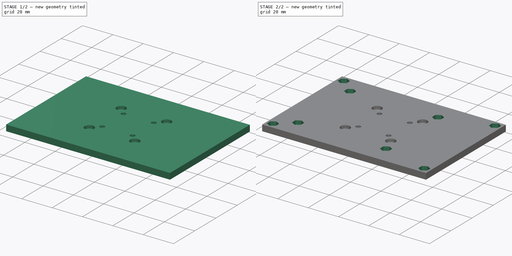
[diagram: build sequence overview — one tinted view per stage of 2, left to right]
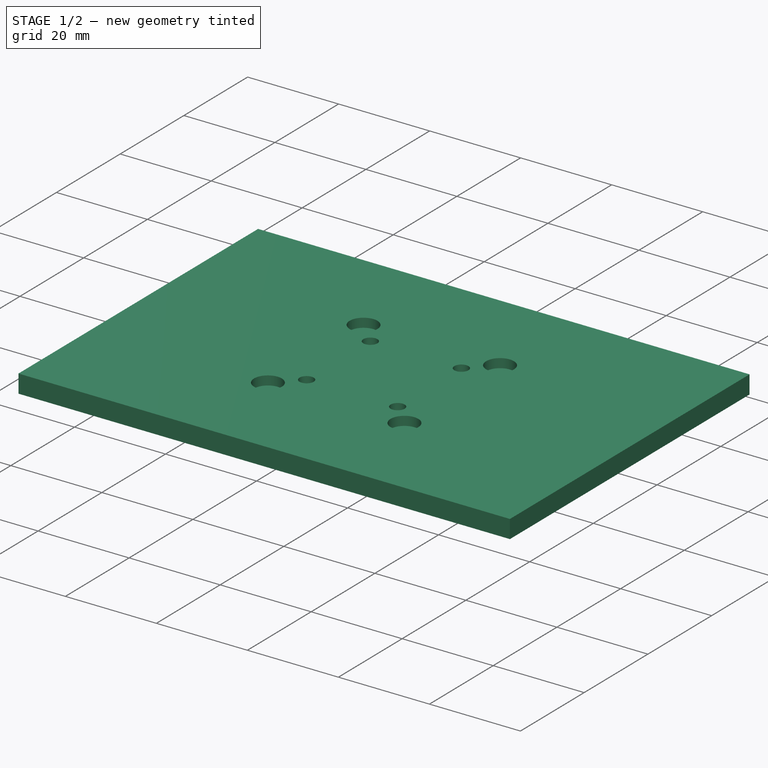
[diagram: stage 1 of 2 — iso view after this stage's code; geometry added in this stage tinted green]
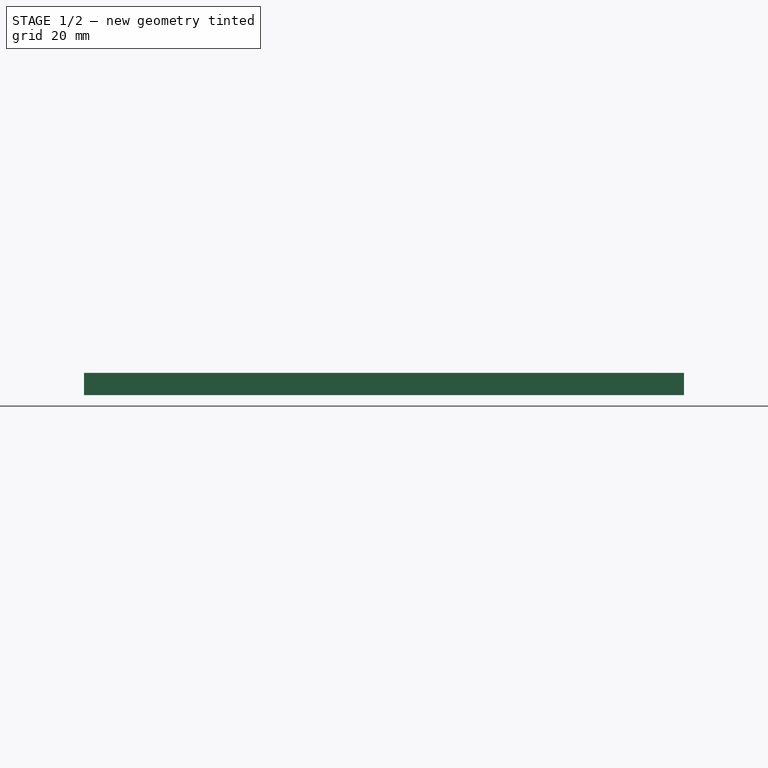
[diagram: stage 1 of 2 — front view after this stage's code; geometry added in this stage tinted green]
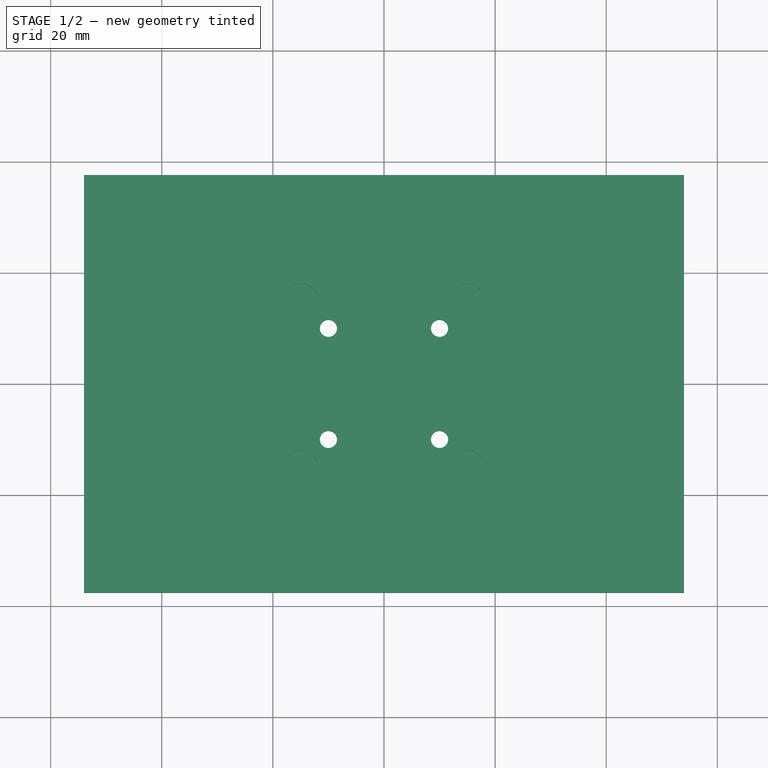
[diagram: stage 1 of 2 — top view after this stage's code; geometry added in this stage tinted green]
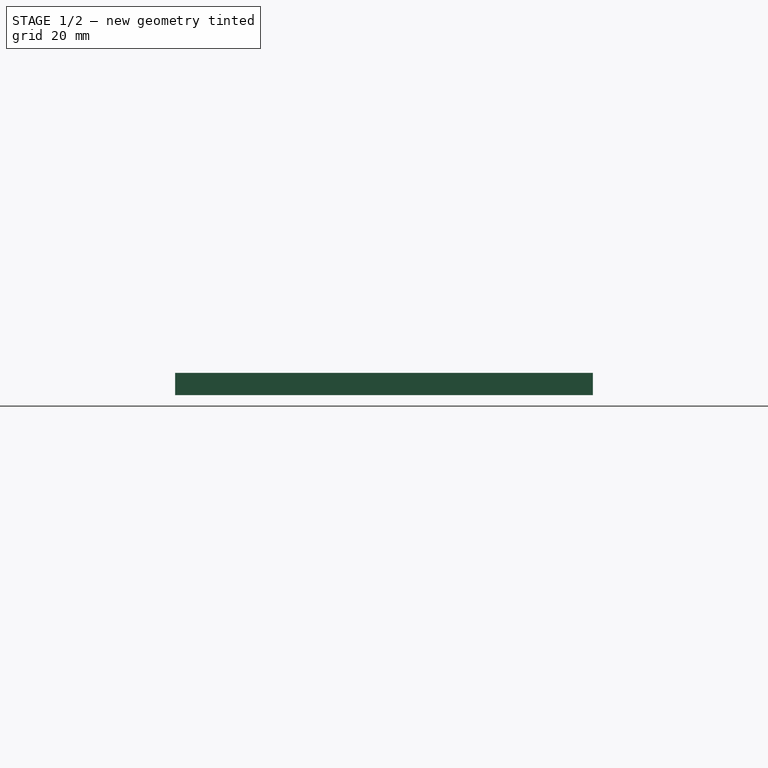
[diagram: stage 1 of 2 — right view after this stage's code; geometry added in this stage tinted green]
FCSTD DOCUMENT  (FreeCAD 0.19R24267 +99 (Git))
Label: UpperPiMount
License: All rights reserved
LicenseURL: http://en.wikipedia.org/wiki/All_rights_reserved
objects: Sketcher::SketchObject×4, PartDesign::Pocket×3, Spreadsheet::Sheet×1, PartDesign::Pad×1, PartDesign::Body×1
note: 13 computed .brp shape members not serialized (recipe doc carries the construction recipe); baked Part::Feature solids carry a one-line shape summary decoded from their .brp

FEATURE [Spreadsheet::Sheet] Spreadsheet
  cells = A2=widthout; B2(widthout)=75.2; A3=lengthout; B3(lengthout)=108; A4=lengthin; B4(lengthin)=94; A5=widthin; B5(widthin)=60; A7=height; B7(height)=4; A9=screwholeinlengthlong; B9(screwholeinlengthlong)=39.5; A10=distancewidthscrewin; B10(distancewidthscrewin)=49; A11=distancelengthscrewout; A12=distancelengthscrewin; B12(distancelengthscrewin)=58; A14=nutscrewhole; B14(nutscrewhole)=5.7; A15=nutscrewwidth; B15(nutscrewwidth)=5.5; A17=stacksmall; B17(stacksmall)=20; A18=stacklarge; B18(stacklarge)=30; A20=depthscrewholes; B20(depthscrewholes)=2.5; A21=depthscrewheadholes; B21(depthscrewheadholes)=2; A22=widthscrewhole; B22(widthscrewhole)=3.1; A23=screwhead; B23(screwhead)=6.1; A25=nutscrewweirdwidth; B25(nutscrewweirdwidth)=6.582
FEATURE [Sketcher::SketchObject] Sketch
  FullyConstrained = true
  MapMode = 5
  Support = -> [XY_Plane]
  expr: Constraints[21] = Spreadsheet.widthscrewhole / 2
  expr: Constraints[23] = Spreadsheet.widthscrewhole / 2
  expr: Constraints[19] = Spreadsheet.stacksmall / 2
  expr: Constraints[18] = Spreadsheet.stacksmall / 2
  expr: Constraints[20] = Spreadsheet.widthscrewhole / 2
  expr: Constraints[15] = Spreadsheet.stacksmall / 2
  expr: Constraints[13] = Spreadsheet.stacksmall / 2
  expr: Constraints[12] = Spreadsheet.stacksmall / 2
  expr: Constraints[11] = Spreadsheet.widthout
  expr: Constraints[10] = Spreadsheet.widthout / 2
  expr: Constraints[22] = Spreadsheet.widthscrewhole / 2
  expr: Constraints[17] = Spreadsheet.stacksmall / 2
  expr: Constraints[14] = Spreadsheet.stacksmall / 2
  expr: Constraints[9] = Spreadsheet.lengthout
  expr: Constraints[16] = Spreadsheet.stacksmall / 2
  expr: Constraints[8] = Spreadsheet.lengthout / 2
  sketch-geometry (8):
    g0: LineSegment StartX=-54 StartY=37.6 StartZ=0 EndX=54 EndY=37.6 EndZ=0
    g1: LineSegment StartX=54 StartY=37.6 StartZ=0 EndX=54 EndY=-37.6 EndZ=0
    g2: LineSegment StartX=54 StartY=-37.6 StartZ=0 EndX=-54 EndY=-37.6 EndZ=0
    g3: LineSegment StartX=-54 StartY=-37.6 StartZ=0 EndX=-54 EndY=37.6 EndZ=0
    g4: Circle CenterX=-10 CenterY=10 CenterZ=0 NormalX=0 NormalY=0 NormalZ=1 AngleXU=0 Radius=1.55
    g5: Circle CenterX=10 CenterY=10 CenterZ=0 NormalX=0 NormalY=0 NormalZ=1 AngleXU=0 Radius=1.55
    g6: Circle CenterX=10 CenterY=-10 CenterZ=0 NormalX=0 NormalY=0 NormalZ=1 AngleXU=0 Radius=1.55
    g7: Circle CenterX=-10 CenterY=-10 CenterZ=0 NormalX=0 NormalY=0 NormalZ=1 AngleXU=0 Radius=1.55
  constraints (24):
    c: Coincident(g0,g1)
    c: Coincident(g1,g2)
    c: Coincident(g2,g3)
    c: Coincident(g3,g0)
    c: Horizontal(g0)
    c: Horizontal(g2)
    c: Vertical(g1)
    c: Vertical(g3)
    c: DistanceX(g-1,g0) = 54
    c: DistanceX(g0,g0) = 108
    c: DistanceY(g-1,g0) = 37.6
    c: DistanceY(g1,g0) = 75.2
    c: DistanceX(g-1,g5) = 10
    c: DistanceX(g-1,g6) = 10
    c: DistanceX(g7,g-1) = 10
    c: DistanceX(g4,g-1) = 10
    c: DistanceY(g-1,g5) = 10
    c: DistanceY(g6,g-1) = 10
    c: DistanceY(g7,g-1) = 10
    c: DistanceY(g-1,g4) = 10
    c: Radius(g5) = 1.55
    c: Radius(g6) = 1.55
    c: Radius(g7) = 1.55
    c: Radius(g4) = 1.55
FEATURE [PartDesign::Pad] Pad
  Direction = (1,1,1)
  Length = 4
  Length2 = 100
  Profile = -> Sketch
  Type = 0
  expr: Length = Spreadsheet.height
FEATURE [Sketcher::SketchObject] Sketch001
  FullyConstrained = true
  MapMode = 5
  Placement = pos=(0,0,4) rot=(0,0,1;0rad)
  Support = -> [Pad]
  expr: Constraints[11] = Spreadsheet.screwhead / 2
  expr: Constraints[9] = Spreadsheet.screwhead / 2
  expr: Constraints[8] = Spreadsheet.screwhead / 2
  expr: Constraints[7] = Spreadsheet.stacklarge / 2
  expr: Constraints[6] = Spreadsheet.stacklarge / 2
  expr: Constraints[4] = Spreadsheet.stacklarge / 2
  expr: Constraints[3] = Spreadsheet.stacklarge / 2
  expr: Constraints[10] = Spreadsheet.screwhead / 2
  expr: Constraints[5] = Spreadsheet.stacklarge / 2
  expr: Constraints[2] = Spreadsheet.stacklarge / 2
  expr: Constraints[1] = Spreadsheet.stacklarge / 2
  expr: Constraints[0] = Spreadsheet.stacklarge / 2
  sketch-geometry (4):
    g0: Circle CenterX=-15 CenterY=15 CenterZ=0 NormalX=0 NormalY=0 NormalZ=1 AngleXU=0 Radius=3.05
    g1: Circle CenterX=15 CenterY=15 CenterZ=0 NormalX=0 NormalY=0 NormalZ=1 AngleXU=0 Radius=3.05
    g2: Circle CenterX=15 CenterY=-15 CenterZ=0 NormalX=0 NormalY=0 NormalZ=1 AngleXU=0 Radius=3.05
    g3: Circle CenterX=-15 CenterY=-15 CenterZ=0 NormalX=0 NormalY=0 NormalZ=1 AngleXU=0 Radius=3.05
  constraints (12):
    c: DistanceX(g-1,g1) = 15
    c: DistanceX(g-1,g2) = 15
    c: DistanceX(g3,g-1) = 15
    c: DistanceX(g0,g-1) = 15
    c: DistanceY(g-1,g1) = 15
    c: DistanceY(g2,g-1) = 15
    c: DistanceY(g3,g-1) = 15
    c: DistanceY(g-1,g0) = 15
    c: Radius(g1) = 3.05
    c: Radius(g2) = 3.05
    c: Radius(g3) = 3.05
    c: Radius(g0) = 3.05
FEATURE [PartDesign::Pocket] Pocket
  BaseFeature = -> Pad
  Length = 2
  Length2 = 100
  Profile = -> Sketch001
  Type = 0
  expr: Length = Spreadsheet.depthscrewheadholes
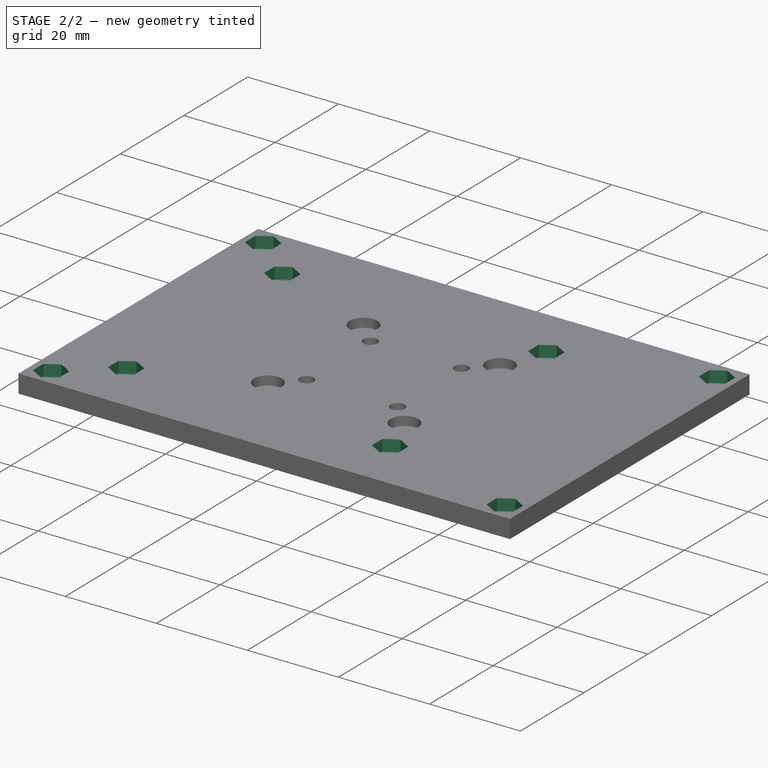
[diagram: stage 2 of 2 — iso view after this stage's code; geometry added in this stage tinted green]
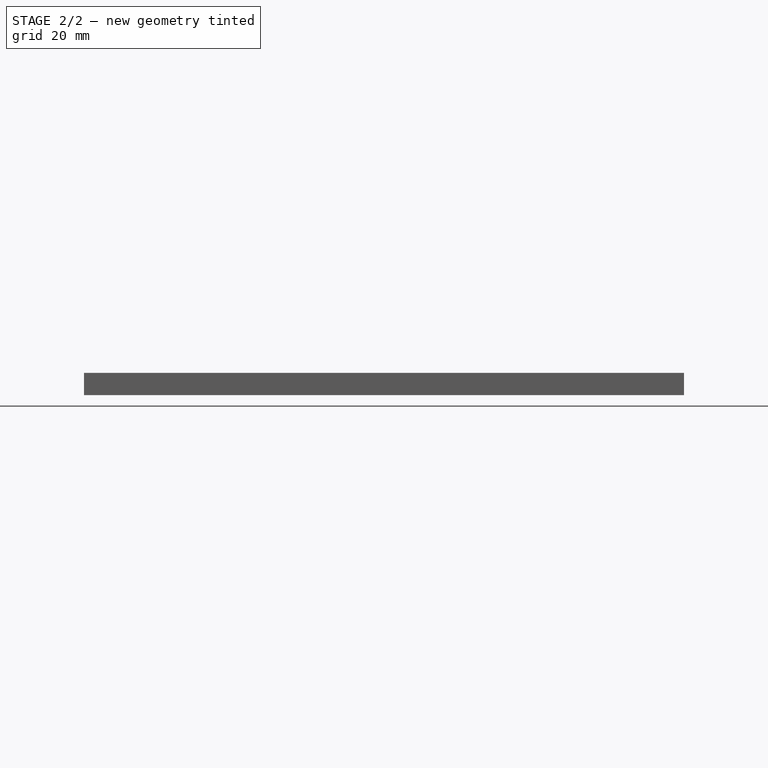
[diagram: stage 2 of 2 — front view after this stage's code; geometry added in this stage tinted green]
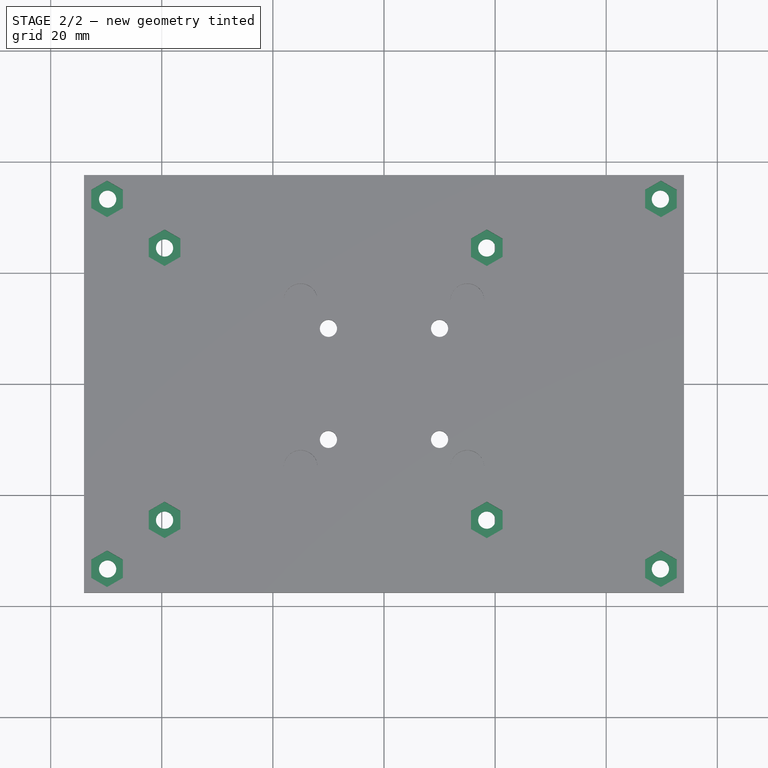
[diagram: stage 2 of 2 — top view after this stage's code; geometry added in this stage tinted green]
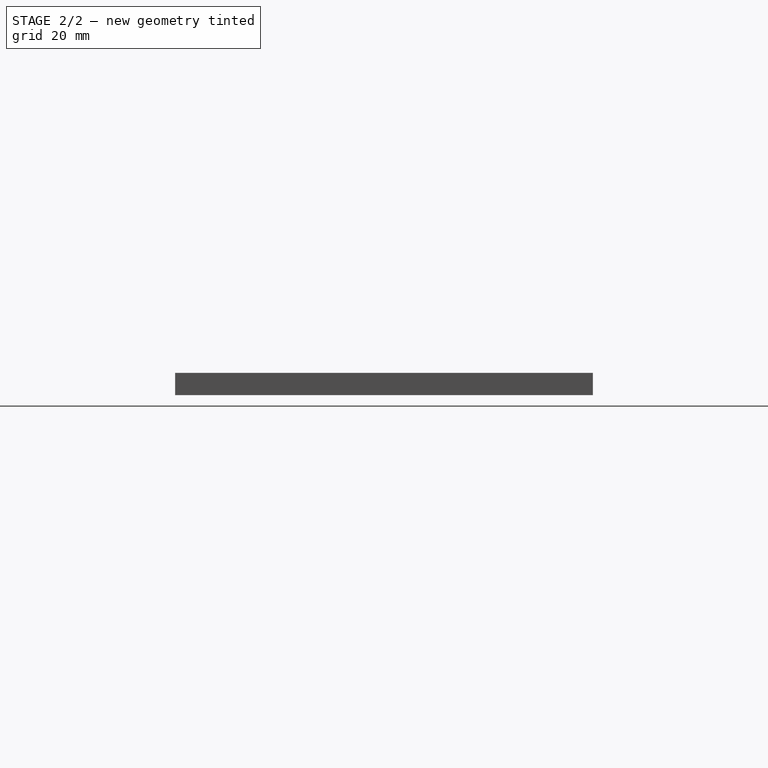
[diagram: stage 2 of 2 — right view after this stage's code; geometry added in this stage tinted green]
FEATURE [Sketcher::SketchObject] Sketch002
  FullyConstrained = true
  MapMode = 5
  Placement = pos=(0,0,4) rot=(0,0,1;0rad)
  Support = -> [Pocket]
  expr: Constraints[164] = Spreadsheet.distancewidthscrewin / 2
  expr: Constraints[160] = Spreadsheet.screwholeinlengthlong
  expr: Constraints[159] = Spreadsheet.widthin / 2
  expr: Constraints[157] = Spreadsheet.widthin / 2
  expr: Constraints[163] = Spreadsheet.distancelengthscrewin - Spreadsheet.screwholeinlengthlong
  expr: Constraints[166] = Spreadsheet.distancewidthscrewin / 2
  expr: Constraints[158] = Spreadsheet.widthin / 2
  expr: Constraints[161] = Spreadsheet.screwholeinlengthlong
  expr: Constraints[167] = Spreadsheet.distancewidthscrewin / 2
  expr: Constraints[155] = Spreadsheet.lengthin / 2
  expr: Constraints[152] = Spreadsheet.lengthin / 2
  expr: Constraints[154] = Spreadsheet.lengthin / 2
  expr: Constraints[151] = Spreadsheet.nutscrewhole
  expr: Constraints[153] = Spreadsheet.lengthin / 2
  expr: Constraints[149] = Spreadsheet.nutscrewhole
  expr: Constraints[156] = Spreadsheet.widthin / 2
  expr: Constraints[148] = Spreadsheet.nutscrewhole
  expr: Constraints[147] = Spreadsheet.nutscrewhole
  expr: Constraints[165] = Spreadsheet.distancewidthscrewin / 2
  expr: Constraints[162] = Spreadsheet.distancelengthscrewin - Spreadsheet.screwholeinlengthlong
  expr: Constraints[146] = Spreadsheet.nutscrewhole
  expr: Constraints[150] = Spreadsheet.nutscrewhole
  expr: Constraints[145] = Spreadsheet.nutscrewhole
  expr: Constraints[141] = Spreadsheet.nutscrewhole
  sketch-geometry (56):
    g0: LineSegment StartX=-47 StartY=31.6454 StartZ=0 EndX=-47 EndY=34.9363 EndZ=0
    g1: LineSegment StartX=-47 StartY=34.9363 StartZ=0 EndX=-49.85 EndY=36.5818 EndZ=0
    g2: LineSegment StartX=-49.85 StartY=36.5818 StartZ=0 EndX=-52.7 EndY=34.9363 EndZ=0
    g3: LineSegment StartX=-52.7 StartY=34.9363 StartZ=0 EndX=-52.7 EndY=31.6454 EndZ=0
    g4: LineSegment StartX=-52.7 StartY=31.6454 StartZ=0 EndX=-49.85 EndY=30 EndZ=0
    g5: LineSegment StartX=-49.85 StartY=30 StartZ=0 EndX=-47 EndY=31.6454 EndZ=0
    g6: Circle CenterX=-49.85 CenterY=33.2909 CenterZ=0 NormalX=0 NormalY=0 NormalZ=1 AngleXU=0 Radius=3.2909
    g7: LineSegment StartX=-49.85 StartY=-36.5818 StartZ=0 EndX=-47 EndY=-34.9363 EndZ=0
    g8: LineSegment StartX=-47 StartY=-34.9363 StartZ=0 EndX=-47 EndY=-31.6454 EndZ=0
    g9: LineSegment StartX=-47 StartY=-31.6454 StartZ=0 EndX=-49.85 EndY=-30 EndZ=0
    g10: LineSegment StartX=-49.85 StartY=-30 StartZ=0 EndX=-52.7 EndY=-31.6454 EndZ=0
    g11: LineSegment StartX=-52.7 StartY=-31.6454 StartZ=0 EndX=-52.7 EndY=-34.9363 EndZ=0
    g12: LineSegment StartX=-52.7 StartY=-34.9363 StartZ=0 EndX=-49.85 EndY=-36.5818 EndZ=0
    g13: Circle CenterX=-49.85 CenterY=-33.2909 CenterZ=0 NormalX=0 NormalY=0 NormalZ=1 AngleXU=0 Radius=3.2909
    g14: LineSegment StartX=52.7 StartY=-34.9363 StartZ=0 EndX=52.7 EndY=-31.6454 EndZ=0
    g15: LineSegment StartX=52.7 StartY=-31.6454 StartZ=0 EndX=49.85 EndY=-30 EndZ=0
    g16: LineSegment StartX=49.85 StartY=-30 StartZ=0 EndX=47 EndY=-31.6454 EndZ=0
    g17: LineSegment StartX=47 StartY=-31.6454 StartZ=0 EndX=47 EndY=-34.9363 EndZ=0
    g18: LineSegment StartX=47 StartY=-34.9363 StartZ=0 EndX=49.85 EndY=-36.5818 EndZ=0
    g19: LineSegment StartX=49.85 StartY=-36.5818 StartZ=0 EndX=52.7 EndY=-34.9363 EndZ=0
    g20: Circle CenterX=49.85 CenterY=-33.2909 CenterZ=0 NormalX=0 NormalY=0 NormalZ=1 AngleXU=0 Radius=3.2909
    g21: LineSegment StartX=52.7 StartY=31.6454 StartZ=0 EndX=52.7 EndY=34.9363 EndZ=0
    g22: LineSegment StartX=52.7 StartY=34.9363 StartZ=0 EndX=49.85 EndY=36.5818 EndZ=0
    g23: LineSegment StartX=49.85 StartY=36.5818 StartZ=0 EndX=47 EndY=34.9363 EndZ=0
    g24: LineSegment StartX=47 StartY=34.9363 StartZ=0 EndX=47 EndY=31.6454 EndZ=0
    g25: LineSegment StartX=47 StartY=31.6454 StartZ=0 EndX=49.85 EndY=30 EndZ=0
    g26: LineSegment StartX=49.85 StartY=30 StartZ=0 EndX=52.7 EndY=31.6454 EndZ=0
    g27: Circle CenterX=49.85 CenterY=33.2909 CenterZ=0 NormalX=0 NormalY=0 NormalZ=1 AngleXU=0 Radius=3.2909
    g28: LineSegment StartX=-36.65 StartY=22.8546 StartZ=0 EndX=-36.65 EndY=26.1454 EndZ=0
    g29: LineSegment StartX=-36.65 StartY=26.1454 StartZ=0 EndX=-39.5 EndY=27.7909 EndZ=0
    g30: LineSegment StartX=-39.5 StartY=27.7909 StartZ=0 EndX=-42.35 EndY=26.1454 EndZ=0
    g31: LineSegment StartX=-42.35 StartY=26.1454 StartZ=0 EndX=-42.35 EndY=22.8546 EndZ=0
    g32: LineSegment StartX=-42.35 StartY=22.8546 StartZ=0 EndX=-39.5 EndY=21.2091 EndZ=0
    g33: LineSegment StartX=-39.5 StartY=21.2091 StartZ=0 EndX=-36.65 EndY=22.8546 EndZ=0
    g34: Circle CenterX=-39.5 CenterY=24.5 CenterZ=0 NormalX=0 NormalY=0 NormalZ=1 AngleXU=0 Radius=3.2909
    g35: LineSegment StartX=21.35 StartY=26.1454 StartZ=0 EndX=18.5 EndY=27.7909 EndZ=0
    g36: LineSegment StartX=18.5 StartY=27.7909 StartZ=0 EndX=15.65 EndY=26.1454 EndZ=0
    g37: LineSegment StartX=15.65 StartY=26.1454 StartZ=0 EndX=15.65 EndY=22.8546 EndZ=0
    g38: LineSegment StartX=15.65 StartY=22.8546 StartZ=0 EndX=18.5 EndY=21.2091 EndZ=0
    g39: LineSegment StartX=18.5 StartY=21.2091 StartZ=0 EndX=21.35 EndY=22.8546 EndZ=0
    g40: LineSegment StartX=21.35 StartY=22.8546 StartZ=0 EndX=21.35 EndY=26.1454 EndZ=0
    g41: Circle CenterX=18.5 CenterY=24.5 CenterZ=0 NormalX=0 NormalY=0 NormalZ=1 AngleXU=0 Radius=3.2909
    g42: LineSegment StartX=21.35 StartY=-26.1454 StartZ=0 EndX=21.35 EndY=-22.8546 EndZ=0
    g43: LineSegment StartX=21.35 StartY=-22.8546 StartZ=0 EndX=18.5 EndY=-21.2091 EndZ=0
    g44: LineSegment StartX=18.5 StartY=-21.2091 StartZ=0 EndX=15.65 EndY=-22.8546 EndZ=0
    g45: LineSegment StartX=15.65 StartY=-22.8546 StartZ=0 EndX=15.65 EndY=-26.1454 EndZ=0
    g46: LineSegment StartX=15.65 StartY=-26.1454 StartZ=0 EndX=18.5 EndY=-27.7909 EndZ=0
    g47: LineSegment StartX=18.5 StartY=-27.7909 StartZ=0 EndX=21.35 EndY=-26.1454 EndZ=0
    g48: Circle CenterX=18.5 CenterY=-24.5 CenterZ=0 NormalX=0 NormalY=0 NormalZ=1 AngleXU=0 Radius=3.2909
    g49: LineSegment StartX=-36.65 StartY=-26.1454 StartZ=0 EndX=-36.65 EndY=-22.8546 EndZ=0
    g50: LineSegment StartX=-36.65 StartY=-22.8546 StartZ=0 EndX=-39.5 EndY=-21.2091 EndZ=0
    g51: LineSegment StartX=-39.5 StartY=-21.2091 StartZ=0 EndX=-42.35 EndY=-22.8546 EndZ=0
    g52: LineSegment StartX=-42.35 StartY=-22.8546 StartZ=0 EndX=-42.35 EndY=-26.1454 EndZ=0
    g53: LineSegment StartX=-42.35 StartY=-26.1454 StartZ=0 EndX=-39.5 EndY=-27.7909 EndZ=0
    g54: LineSegment StartX=-39.5 StartY=-27.7909 StartZ=0 EndX=-36.65 EndY=-26.1454 EndZ=0
    g55: Circle CenterX=-39.5 CenterY=-24.5 CenterZ=0 NormalX=0 NormalY=0 NormalZ=1 AngleXU=0 Radius=3.2909
  constraints (136):
    c: Coincident(g0,g1)
    c: Coincident(g1,g2)
    c: Coincident(g2,g3)
    c: Coincident(g3,g4)
    c: Coincident(g4,g5)
    c: Coincident(g5,g0)
    c: Equal(g0, g1-g5) x5
    c: PointOnObject(g0,g6)
    c: PointOnObject(g1,g6)
    c: PointOnObject(g2,g6)
    c: PointOnObject(g3,g6)
    c: PointOnObject(g4,g6)
    c: PointOnObject(g5,g6)
    c: Coincident(g7,g8)
    c: Coincident(g8,g9)
    c: Coincident(g9,g10)
    c: Coincident(g10,g11)
    c: Coincident(g11,g12)
    c: Coincident(g12,g7)
    c: Equal(g7, g8-g12) x5
    c: PointOnObject(g7,g13)
    c: PointOnObject(g8,g13)
    c: PointOnObject(g9,g13)
    c: PointOnObject(g10,g13)
    c: PointOnObject(g11,g13)
    c: PointOnObject(g12,g13)
    c: Coincident(g14,g15)
    c: Coincident(g15,g16)
    c: Coincident(g16,g17)
    c: Coincident(g17,g18)
    c: Coincident(g18,g19)
    c: Coincident(g19,g14)
    c: Equal(g14, g15-g19) x5
    c: PointOnObject(g14,g20)
    c: PointOnObject(g15,g20)
    c: PointOnObject(g16,g20)
    c: PointOnObject(g17,g20)
    c: PointOnObject(g18,g20)
    c: PointOnObject(g19,g20)
    c: Coincident(g21,g22)
    c: Coincident(g22,g23)
    c: Coincident(g23,g24)
    c: Coincident(g24,g25)
    c: Coincident(g25,g26)
    c: Coincident(g26,g21)
    c: Equal(g21, g22-g26) x5
    c: PointOnObject(g21,g27)
    c: PointOnObject(g22,g27)
    c: PointOnObject(g23,g27)
    c: PointOnObject(g24,g27)
    c: PointOnObject(g25,g27)
    c: PointOnObject(g26,g27)
    c: Parallel(g24,g-2)
    c: Parallel(g17,g-2)
    c: Parallel(g8,g-2)
    c: Parallel(g0,g-2)
    c: Coincident(g28,g29)
    c: Coincident(g29,g30)
    c: Coincident(g30,g31)
    c: Coincident(g31,g32)
    c: Coincident(g32,g33)
    c: Coincident(g33,g28)
    c: Equal(g28, g29-g33) x5
    c: PointOnObject(g28,g34)
    c: PointOnObject(g29,g34)
    c: PointOnObject(g30,g34)
    c: PointOnObject(g31,g34)
    c: PointOnObject(g32,g34)
    c: PointOnObject(g33,g34)
    c: Coincident(g35,g36)
    c: Coincident(g36,g37)
    c: Coincident(g37,g38)
    c: Coincident(g38,g39)
    c: Coincident(g39,g40)
    c: Coincident(g40,g35)
    c: Equal(g35, g36-g40) x5
    c: PointOnObject(g35,g41)
    c: PointOnObject(g36,g41)
    c: PointOnObject(g37,g41)
    c: PointOnObject(g38,g41)
    c: PointOnObject(g39,g41)
    c: PointOnObject(g40,g41)
    c: Coincident(g42,g43)
    c: Coincident(g43,g44)
    c: Coincident(g44,g45)
    c: Coincident(g45,g46)
    c: Coincident(g46,g47)
    c: Coincident(g47,g42)
    c: Equal(g42, g43-g47) x5
    c: PointOnObject(g42,g48)
    c: PointOnObject(g43,g48)
    c: PointOnObject(g44,g48)
    c: PointOnObject(g45,g48)
    c: PointOnObject(g46,g48)
    c: PointOnObject(g47,g48)
    c: Coincident(g49,g50)
    c: Coincident(g50,g51)
    c: Coincident(g51,g52)
    c: Coincident(g52,g53)
    c: Coincident(g53,g54)
    c: Coincident(g54,g49)
    c: Equal(g49, g50-g54) x5
    c: PointOnObject(g49,g55)
    c: PointOnObject(g50,g55)
    c: PointOnObject(g51,g55)
    c: PointOnObject(g52,g55)
    c: PointOnObject(g53,g55)
    c: PointOnObject(g54,g55)
    c: Parallel(g37,g-2)
    c: DistanceX(g37,g39) = 5.7
    c: Parallel(g28,g-2)
    c: Parallel(g49,g-2)
    c: Parallel(g45,g-2)
    c: DistanceX(g16,g14) = 5.7
    c: DistanceX(g31,g28) = 5.7
    c: DistanceX(g24,g21) = 5.7
    c: DistanceX(g3,g0) = 5.7
    c: DistanceX(g52,g49) = 5.7
    c: DistanceX(g11,g7) = 5.7
    c: DistanceX(g45,g42) = 5.7
    c: DistanceX(g-1,g24) = 47
    c: DistanceX(g-1,g16) = 47
    c: DistanceX(g8,g-1) = 47
    c: DistanceX(g0,g-1) = 47
    c: DistanceY(g-1,g25) = 30
    c: DistanceY(g15,g-1) = 30
    c: DistanceY(g9,g-1) = 30
    c: DistanceY(g-1,g4) = 30
    c: DistanceX(g34,g-1) = 39.5
    c: DistanceX(g55,g-1) = 39.5
    c: DistanceX(g-1,g41) = 18.5
    c: DistanceX(g-1,g48) = 18.5
    c: DistanceY(g-1,g41) = 24.5
    c: DistanceY(g48,g-1) = 24.5
    c: DistanceY(g55,g-1) = 24.5
    c: DistanceY(g-1,g34) = 24.5
FEATURE [PartDesign::Pocket] Pocket001
  BaseFeature = -> Pocket
  Length = 2.5
  Length2 = 100
  Profile = -> Sketch002
  Type = 0
  expr: Length = Spreadsheet.depthscrewholes
FEATURE [Sketcher::SketchObject] Sketch003
  FullyConstrained = true
  MapMode = 5
  Placement = pos=(0,0,4) rot=(0,0,1;0rad)
  Support = -> [Pocket001]
  expr: Constraints[21] = Spreadsheet.widthin / 2 + Spreadsheet.nutscrewweirdwidth / 2
  expr: Constraints[20] = Spreadsheet.widthin / 2 + Spreadsheet.nutscrewweirdwidth / 2
  expr: Constraints[23] = Spreadsheet.widthin / 2 + Spreadsheet.nutscrewweirdwidth / 2
  expr: Constraints[19] = Spreadsheet.distancewidthscrewin / 2
  expr: Constraints[16] = Spreadsheet.distancewidthscrewin / 2
  expr: Constraints[15] = Spreadsheet.distancelengthscrewin - Spreadsheet.screwholeinlengthlong
  expr: Constraints[11] = Spreadsheet.lengthin / 2 + Spreadsheet.nutscrewwidth / 2
  expr: Constraints[22] = Spreadsheet.widthin / 2 + Spreadsheet.nutscrewweirdwidth / 2
  expr: Constraints[14] = Spreadsheet.distancelengthscrewin - Spreadsheet.screwholeinlengthlong
  expr: Constraints[17] = Spreadsheet.distancewidthscrewin / 2
  expr: Constraints[9] = Spreadsheet.lengthin / 2 + Spreadsheet.nutscrewwidth / 2
  expr: Constraints[8] = Spreadsheet.lengthin / 2 + Spreadsheet.nutscrewwidth / 2
  expr: Constraints[7] = Spreadsheet.widthscrewhole / 2
  expr: Constraints[13] = Spreadsheet.screwholeinlengthlong
  expr: Constraints[6] = Spreadsheet.widthscrewhole / 2
  expr: Constraints[4] = Spreadsheet.widthscrewhole / 2
  expr: Constraints[3] = Spreadsheet.widthscrewhole / 2
  expr: Constraints[10] = Spreadsheet.lengthin / 2 + Spreadsheet.nutscrewwidth / 2
  expr: Constraints[2] = Spreadsheet.widthscrewhole / 2
  expr: Constraints[5] = Spreadsheet.widthscrewhole / 2
  expr: Constraints[1] = Spreadsheet.widthscrewhole / 2
  expr: Constraints[12] = Spreadsheet.screwholeinlengthlong
  expr: Constraints[18] = Spreadsheet.distancewidthscrewin / 2
  expr: Constraints[0] = Spreadsheet.widthscrewhole / 2
  sketch-geometry (8):
    g0: Circle CenterX=-49.75 CenterY=33.291 CenterZ=0 NormalX=0 NormalY=0 NormalZ=1 AngleXU=0 Radius=1.55
    g1: Circle CenterX=-39.5 CenterY=24.5 CenterZ=0 NormalX=0 NormalY=0 NormalZ=1 AngleXU=0 Radius=1.55
    g2: Circle CenterX=18.5 CenterY=24.5 CenterZ=0 NormalX=0 NormalY=0 NormalZ=1 AngleXU=0 Radius=1.55
    g3: Circle CenterX=49.75 CenterY=33.291 CenterZ=0 NormalX=0 NormalY=0 NormalZ=1 AngleXU=0 Radius=1.55
    g4: Circle CenterX=49.75 CenterY=-33.291 CenterZ=0 NormalX=0 NormalY=0 NormalZ=1 AngleXU=0 Radius=1.55
    g5: Circle CenterX=18.5 CenterY=-24.5 CenterZ=0 NormalX=0 NormalY=0 NormalZ=1 AngleXU=0 Radius=1.55
    g6: Circle CenterX=-39.5 CenterY=-24.5 CenterZ=0 NormalX=0 NormalY=0 NormalZ=1 AngleXU=0 Radius=1.55
    g7: Circle CenterX=-49.75 CenterY=-33.291 CenterZ=0 NormalX=0 NormalY=0 NormalZ=1 AngleXU=0 Radius=1.55
  constraints (24):
    c: Radius(g2) = 1.55
    c: Radius(g3) = 1.55
    c: Radius(g4) = 1.55
    c: Radius(g5) = 1.55
    c: Radius(g6) = 1.55
    c: Radius(g7) = 1.55
    c: Radius(g1) = 1.55
    c: Radius(g0) = 1.55
    c: DistanceX(g-1,g3) = 49.75
    c: DistanceX(g0,g-1) = 49.75
    c: DistanceX(g-1,g4) = 49.75
    c: DistanceX(g7,g-1) = 49.75
    c: DistanceX(g1,g-1) = 39.5
    c: DistanceX(g6,g-1) = 39.5
    c: DistanceX(g-1,g2) = 18.5
    c: DistanceX(g-1,g5) = 18.5
    c: DistanceY(g-1,g2) = 24.5
    c: DistanceY(g5,g-1) = 24.5
    c: DistanceY(g6,g-1) = 24.5
    c: DistanceY(g-1,g1) = 24.5
    c: DistanceY(g-1,g3) = 33.291
    c: DistanceY(g4,g-1) = 33.291
    c: DistanceY(g7,g-1) = 33.291
    c: DistanceY(g-1,g0) = 33.291
FEATURE [PartDesign::Pocket] Pocket002
  BaseFeature = -> Pocket001
  Length = 4
  Length2 = 100
  Profile = -> Sketch003
  Type = 0
  expr: Length = Spreadsheet.height
FEATURE [PartDesign::Body] Body
  Group = -> [Sketch,Pad,Sketch001,Pocket,Sketch002,Pocket001,Sketch003,Pocket002]
  Origin = -> Origin
  Tip = -> Pocket002
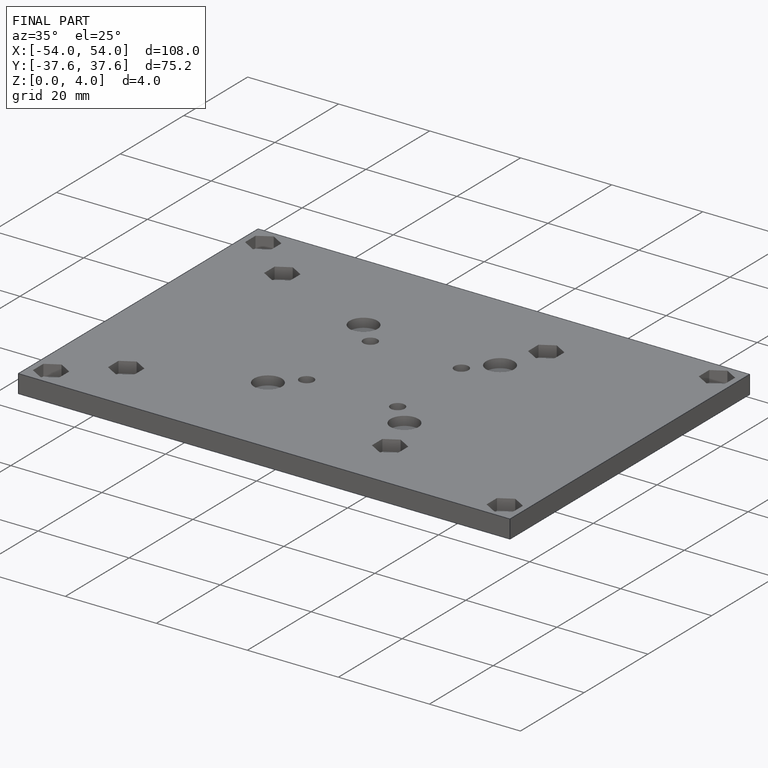
[diagram: finished part — iso view with bounding-box wireframe]
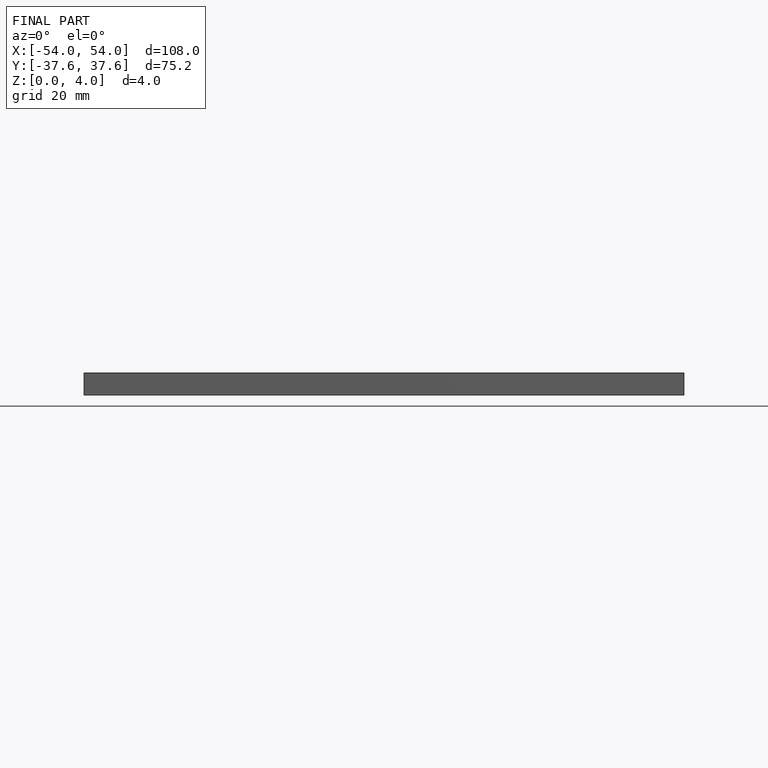
[diagram: finished part — front view with bounding-box wireframe]
